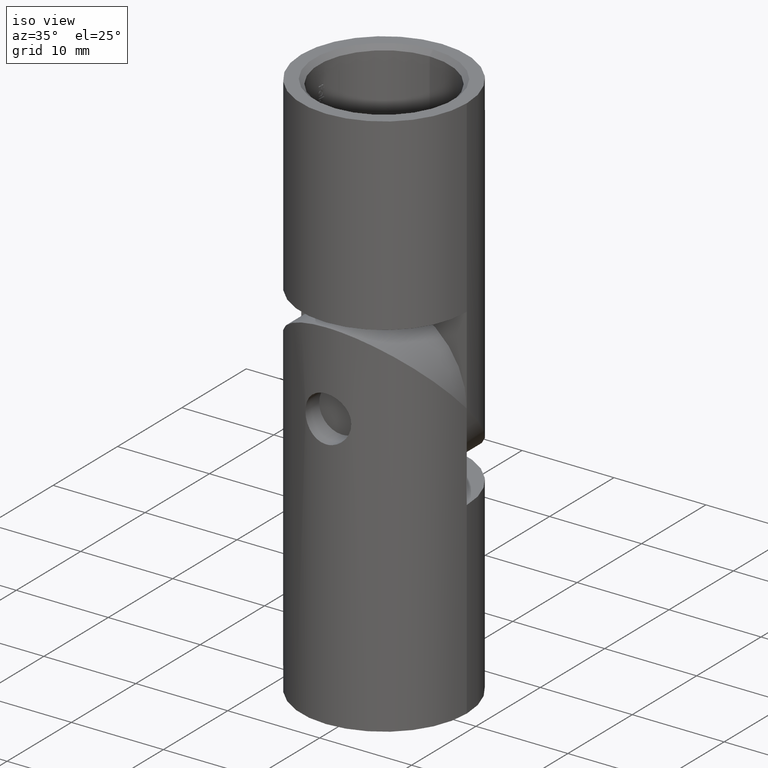
[diagram: clean part render]
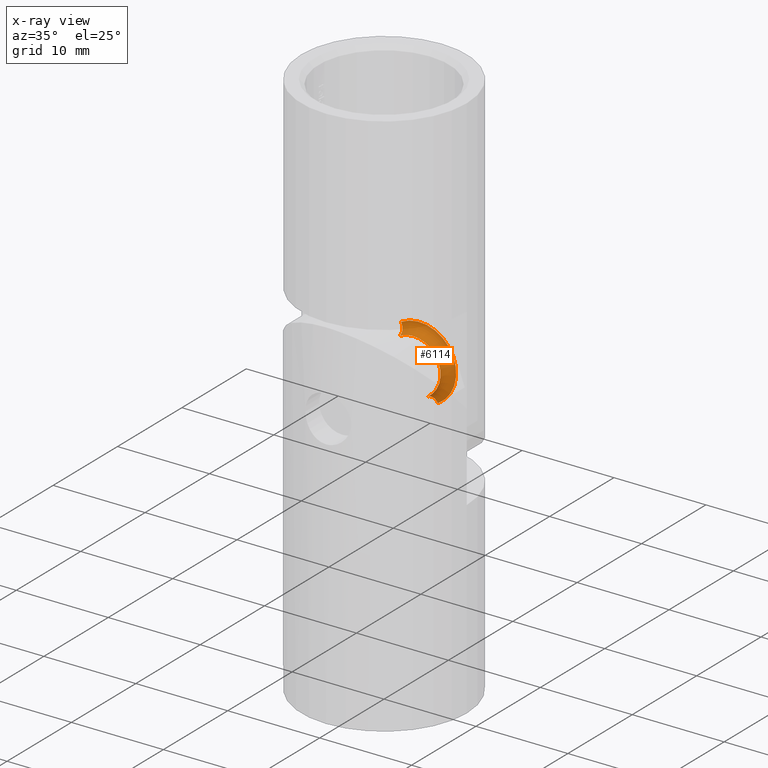
[diagram: x-ray — body ghosted, one internal face saturated and labeled with its STEP entity id]
A machine part, iso view, then the same camera in x-ray: the body is ghosted and one INTERNAL B-rep face — a face not visible from any outside direction — is saturated and labeled: STEP entity #6114.
In plain terms, the highlighted toroidal blend (fillet) surface has major radius 4 mm and minor (blend) radius 1 mm.
Its self-contained STEP definition (entity closure, byte-faithful):
#111 = DIRECTION ( 'NONE',  ( 1.000000000000000000, 0.000000000000000000, -1.224646799147353207E-16 ) ) ;
#924 = EDGE_CURVE ( 'NONE', #7249, #2361, #3695, .T. ) ;
#1201 = DIRECTION ( 'NONE',  ( -1.224646799147353454E-16, 0.000000000000000000, -1.000000000000000000 ) ) ;
#1262 = AXIS2_PLACEMENT_3D ( 'NONE', #4650, #1616, #11802 ) ;
#1463 = VERTEX_POINT ( 'NONE', #11840 ) ;
#1569 = ORIENTED_EDGE ( 'NONE', *, *, #11107, .T. ) ;
#1616 = DIRECTION ( 'NONE',  ( 0.000000000000000000, -1.000000000000000000, 0.000000000000000000 ) ) ;
#2361 = VERTEX_POINT ( 'NONE', #11439 ) ;
#2968 = FACE_OUTER_BOUND ( 'NONE', #4936, .T. ) ;
#3238 = CARTESIAN_POINT ( 'NONE',  ( 0.000000000000000000, 3.299999999999999822, -3.999999999999997335 ) ) ;
#3321 = DIRECTION ( 'NONE',  ( 0.000000000000000000, 0.000000000000000000, -1.000000000000000000 ) ) ;
#3381 = ORIENTED_EDGE ( 'NONE', *, *, #924, .F. ) ;
#3695 = CIRCLE ( 'NONE', #6443, 2.999999999999997335 ) ;
#4650 = CARTESIAN_POINT ( 'NONE',  ( 0.000000000000000000, 3.299999999999999822, 0.000000000000000000 ) ) ;
#4697 = VERTEX_POINT ( 'NONE', #3238 ) ;
#4891 = DIRECTION ( 'NONE',  ( -1.000000000000000000, -0.000000000000000000, -0.000000000000000000 ) ) ;
#4936 = EDGE_LOOP ( 'NONE', ( #9042, #1569, #3381, #9052 ) ) ;
#4954 = EDGE_CURVE ( 'NONE', #1463, #4697, #9288, .T. ) ;
#5230 = CARTESIAN_POINT ( 'NONE',  ( 4.898587196589409870E-16, 4.299999999999999822, 3.999999999999997335 ) ) ;
#6022 = DIRECTION ( 'NONE',  ( 0.000000000000000000, 0.000000000000000000, 1.000000000000000000 ) ) ;
#6114 = ADVANCED_FACE ( 'NONE', ( #2968 ), #7810, .F. ) ;
#6166 = EDGE_CURVE ( 'NONE', #4697, #7249, #10744, .T. ) ;
#6443 = AXIS2_PLACEMENT_3D ( 'NONE', #7500, #9518, #3321 ) ;
#7249 = VERTEX_POINT ( 'NONE', #12283 ) ;
#7500 = CARTESIAN_POINT ( 'NONE',  ( 0.000000000000000000, 4.299999999999999822, 0.000000000000000000 ) ) ;
#7810 = TOROIDAL_SURFACE ( 'NONE', #8822, 3.999999999999997335, 1.000000000000000000 ) ;
#8096 = CARTESIAN_POINT ( 'NONE',  ( 0.000000000000000000, 4.299999999999999822, -3.999999999999997335 ) ) ;
#8822 = AXIS2_PLACEMENT_3D ( 'NONE', #10003, #12266, #12228 ) ;
#9042 = ORIENTED_EDGE ( 'NONE', *, *, #4954, .F. ) ;
#9052 = ORIENTED_EDGE ( 'NONE', *, *, #6166, .F. ) ;
#9288 = CIRCLE ( 'NONE', #1262, 3.999999999999997335 ) ;
#9487 = CIRCLE ( 'NONE', #12566, 1.000000000000000000 ) ;
#9518 = DIRECTION ( 'NONE',  ( -0.000000000000000000, 1.000000000000000000, -0.000000000000000000 ) ) ;
#10003 = CARTESIAN_POINT ( 'NONE',  ( 0.000000000000000000, 4.299999999999999822, 0.000000000000000000 ) ) ;
#10744 = CIRCLE ( 'NONE', #11337, 1.000000000000000000 ) ;
#11107 = EDGE_CURVE ( 'NONE', #1463, #2361, #9487, .T. ) ;
#11337 = AXIS2_PLACEMENT_3D ( 'NONE', #8096, #4891, #6022 ) ;
#11439 = CARTESIAN_POINT ( 'NONE',  ( 3.673940397442056417E-16, 4.299999999999999822, 2.999999999999997335 ) ) ;
#11802 = DIRECTION ( 'NONE',  ( 0.000000000000000000, 0.000000000000000000, -1.000000000000000000 ) ) ;
#11840 = CARTESIAN_POINT ( 'NONE',  ( 4.898587196589409870E-16, 3.299999999999999822, 3.999999999999997335 ) ) ;
#12228 = DIRECTION ( 'NONE',  ( 0.000000000000000000, 0.000000000000000000, -1.000000000000000000 ) ) ;
#12266 = DIRECTION ( 'NONE',  ( 0.000000000000000000, -1.000000000000000000, 0.000000000000000000 ) ) ;
#12283 = CARTESIAN_POINT ( 'NONE',  ( 0.000000000000000000, 4.299999999999999822, -2.999999999999997335 ) ) ;
#12566 = AXIS2_PLACEMENT_3D ( 'NONE', #5230, #111, #1201 ) ;